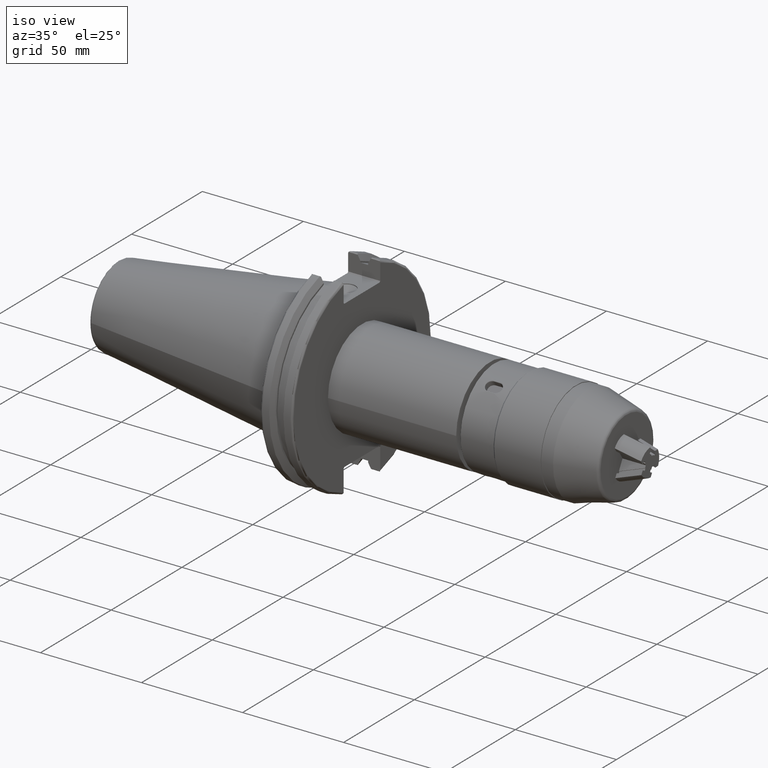
[diagram: clean part render]
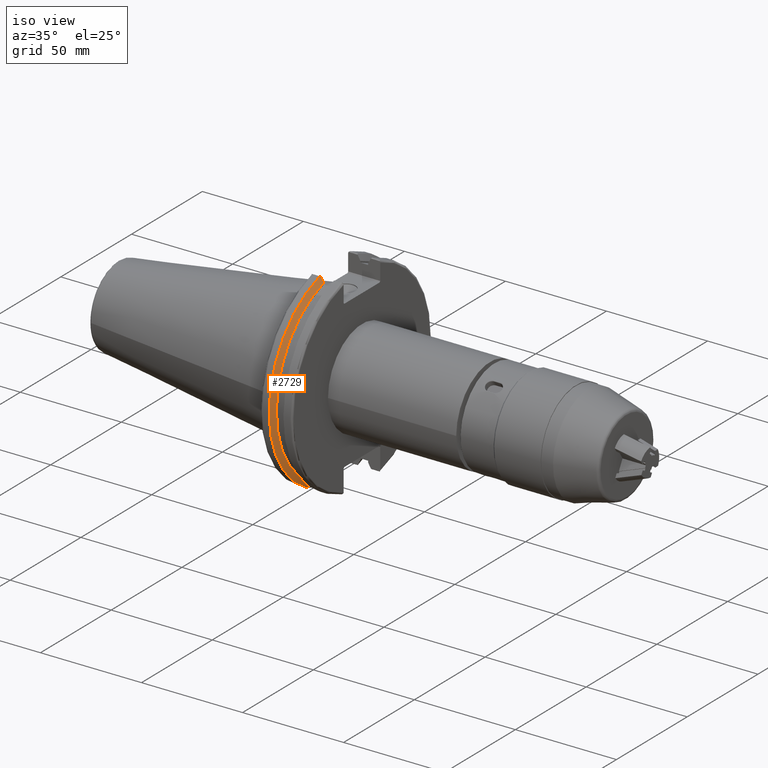
[diagram: same view with one face highlighted and labeled with its STEP entity id]
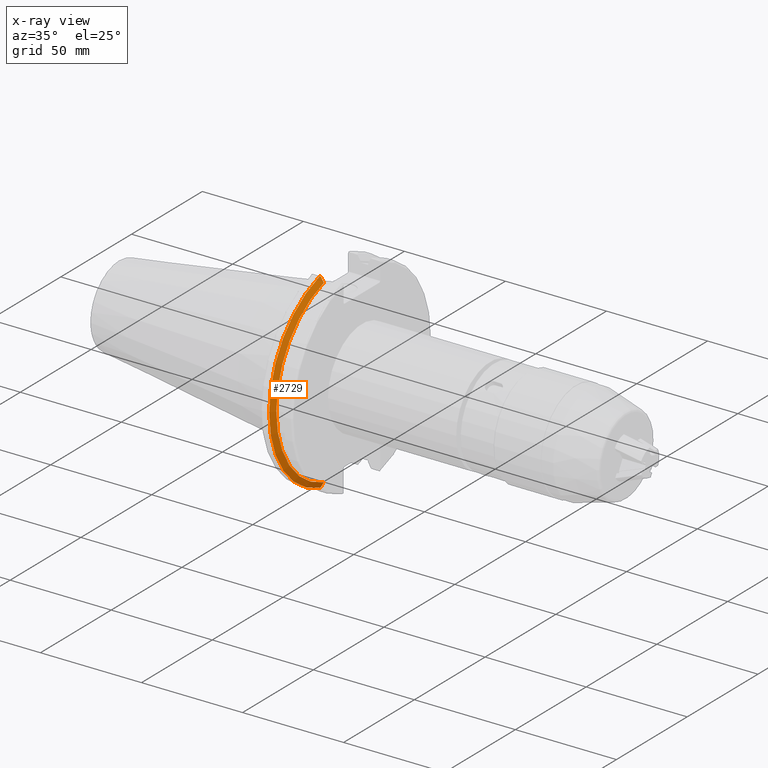
[diagram: x-ray of the same camera — body ghosted, the highlighted face saturated]
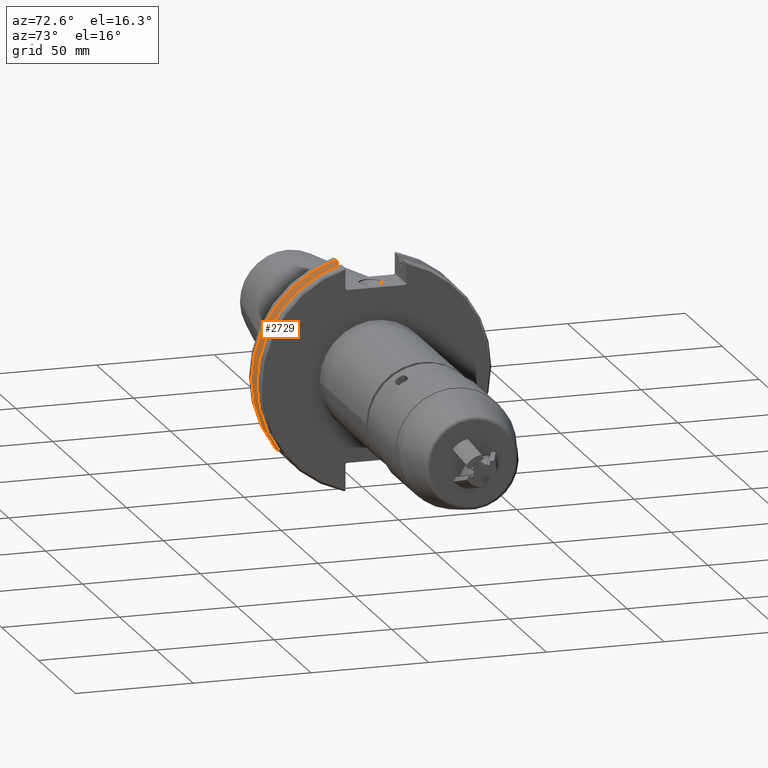
[diagram: same view with one face highlighted and labeled with its STEP entity id]
A machine part, iso view. The second image highlights one B-rep face of the part: STEP entity #2729.
The next image is the same camera in x-ray: the body ghosted, the highlighted face saturated — about 0% of this face is hidden behind the body in this view.
A second angle (auxiliary view) of the same face is appended — the face is thin or edge-on in the first view.
In plain terms, the highlighted conical surface has half-angle 60 deg.
Its self-contained STEP definition (entity closure, byte-faithful):
#358=(
BOUNDED_CURVE()
B_SPLINE_CURVE(2,(#4481,#4482,#4483),.UNSPECIFIED.,.F.,.F.)
B_SPLINE_CURVE_WITH_KNOTS((3,3),(0.,0.275823910675363),.UNSPECIFIED.)
CURVE()
GEOMETRIC_REPRESENTATION_ITEM()
RATIONAL_B_SPLINE_CURVE((1.,1.00038235575411,1.00012873637099))
REPRESENTATION_ITEM('')
);
#361=(
BOUNDED_CURVE()
B_SPLINE_CURVE(2,(#4509,#4510,#4511),.UNSPECIFIED.,.F.,.F.)
B_SPLINE_CURVE_WITH_KNOTS((3,3),(0.0558332664508432,0.331657177124506),
 .UNSPECIFIED.)
CURVE()
GEOMETRIC_REPRESENTATION_ITEM()
RATIONAL_B_SPLINE_CURVE((1.00012873636717,1.00038235574275,1.))
REPRESENTATION_ITEM('')
);
#362=(
BOUNDED_CURVE()
B_SPLINE_CURVE(2,(#4544,#4545,#4546),.UNSPECIFIED.,.F.,.F.)
B_SPLINE_CURVE_WITH_KNOTS((3,3),(0.,0.0648240472897574),.UNSPECIFIED.)
CURVE()
GEOMETRIC_REPRESENTATION_ITEM()
RATIONAL_B_SPLINE_CURVE((1.,1.00011477674865,1.00019140645997))
REPRESENTATION_ITEM('')
);
#363=(
BOUNDED_CURVE()
B_SPLINE_CURVE(2,(#4552,#4553,#4554),.UNSPECIFIED.,.F.,.F.)
B_SPLINE_CURVE_WITH_KNOTS((3,3),(0.325260944932423,0.3900849922222),
 .UNSPECIFIED.)
CURVE()
GEOMETRIC_REPRESENTATION_ITEM()
RATIONAL_B_SPLINE_CURVE((1.00019140645937,1.00011477674829,1.))
REPRESENTATION_ITEM('')
);
#419=CONICAL_SURFACE('',#3128,47.8172386482472,1.0471975511966);
#577=FACE_OUTER_BOUND('',#736,.T.);
#736=EDGE_LOOP('',(#2185,#2186,#2187,#2188,#2189,#2190));
#1268=CIRCLE('',#3090,49.2125);
#1283=CIRCLE('',#3129,46.4219772964944);
#1412=VERTEX_POINT('',#4478);
#1413=VERTEX_POINT('',#4480);
#1422=VERTEX_POINT('',#4506);
#1423=VERTEX_POINT('',#4508);
#1427=VERTEX_POINT('',#4542);
#1428=VERTEX_POINT('',#4548);
#1658=EDGE_CURVE('',#1413,#1412,#358,.T.);
#1669=EDGE_CURVE('',#1423,#1422,#361,.T.);
#1677=EDGE_CURVE('',#1427,#1412,#362,.T.);
#1679=EDGE_CURVE('',#1427,#1428,#1268,.T.);
#1680=EDGE_CURVE('',#1423,#1428,#363,.T.);
#1723=EDGE_CURVE('',#1413,#1422,#1283,.T.);
#2185=ORIENTED_EDGE('',*,*,#1680,.F.);
#2186=ORIENTED_EDGE('',*,*,#1669,.T.);
#2187=ORIENTED_EDGE('',*,*,#1723,.F.);
#2188=ORIENTED_EDGE('',*,*,#1658,.T.);
#2189=ORIENTED_EDGE('',*,*,#1677,.F.);
#2190=ORIENTED_EDGE('',*,*,#1679,.T.);
#2729=ADVANCED_FACE('',(#577),#419,.T.);
#3090=AXIS2_PLACEMENT_3D('',#4550,#3535,#3536);
#3128=AXIS2_PLACEMENT_3D('',#4674,#3629,#3630);
#3129=AXIS2_PLACEMENT_3D('',#4675,#3631,#3632);
#3535=DIRECTION('center_axis',(1.,0.,0.));
#3536=DIRECTION('ref_axis',(0.,0.,-1.));
#3629=DIRECTION('center_axis',(-1.,0.,0.));
#3630=DIRECTION('ref_axis',(0.,-1.,-1.22464679914735E-16));
#3631=DIRECTION('center_axis',(1.,0.,0.));
#3632=DIRECTION('ref_axis',(0.,0.,-1.));
#4478=CARTESIAN_POINT('',(7.87958960562425,-12.95,46.9780755322918));
#4480=CARTESIAN_POINT('',(9.2123,-12.95,44.5791147973604));
#4481=CARTESIAN_POINT('Ctrl Pts',(9.2123,-12.95,44.5791147973604));
#4482=CARTESIAN_POINT('Ctrl Pts',(8.56340449055559,-12.95,45.7494966802201));
#4483=CARTESIAN_POINT('Ctrl Pts',(7.87958960562425,-12.95,46.9780755322918));
#4506=CARTESIAN_POINT('',(9.2123,-12.95,-44.5791147973604));
#4508=CARTESIAN_POINT('',(7.87958960562425,-12.95,-46.9780755322918));
#4509=CARTESIAN_POINT('Ctrl Pts',(7.87958960562425,-12.95,-46.9780755322918));
#4510=CARTESIAN_POINT('Ctrl Pts',(8.56340449054235,-12.95,-45.7494966802439));
#4511=CARTESIAN_POINT('Ctrl Pts',(9.2123,-12.95,-44.5791147973604));
#4542=CARTESIAN_POINT('',(7.60119096595128,-13.4317035994433,47.3440544806494));
#4544=CARTESIAN_POINT('Ctrl Pts',(7.60119096595127,-13.4317035994433,47.3440544806494));
#4545=CARTESIAN_POINT('Ctrl Pts',(7.74146896663823,-13.1896660169965,47.1601640966264));
#4546=CARTESIAN_POINT('Ctrl Pts',(7.87958960562425,-12.95,46.9780755322918));
#4548=CARTESIAN_POINT('',(7.60119096595128,-13.4317035994433,-47.3440544806494));
#4550=CARTESIAN_POINT('Origin',(7.60119096595128,0.,0.));
#4552=CARTESIAN_POINT('Ctrl Pts',(7.87958960562425,-12.95,-46.9780755322918));
#4553=CARTESIAN_POINT('Ctrl Pts',(7.74146896663818,-13.1896660169967,-47.1601640966265));
#4554=CARTESIAN_POINT('Ctrl Pts',(7.60119096595127,-13.4317035994433,-47.3440544806494));
#4674=CARTESIAN_POINT('Origin',(8.40674548297564,0.,0.));
#4675=CARTESIAN_POINT('Origin',(9.2123,0.,0.));